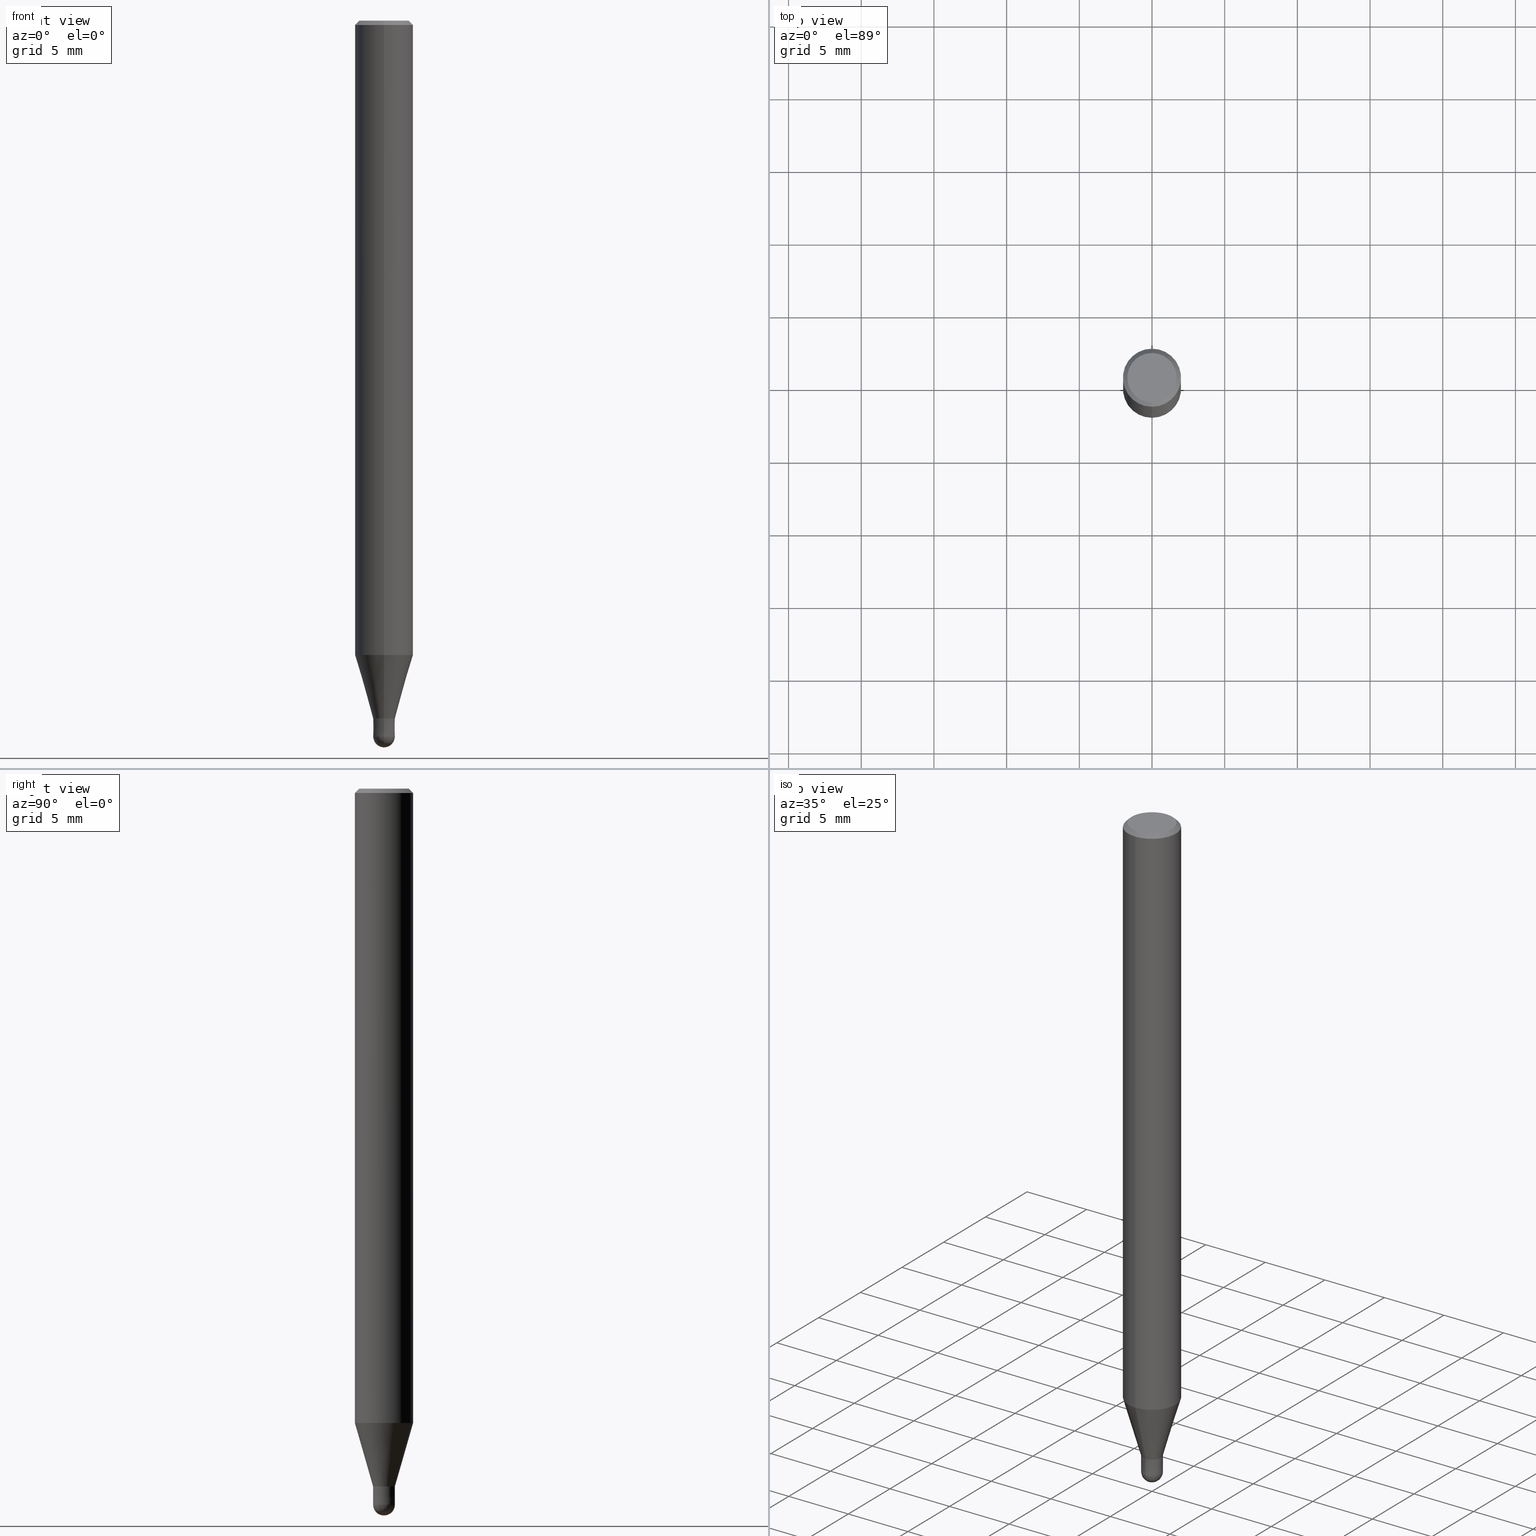
[diagram: canonical four-view strip — front | top / right | iso, engineering-drawing reading convention]
A machine part, canonical four-view strip (front | top / right | iso — engineering-drawing reading convention). The complete STEP part file that produces these views, byte-faithful:
ISO-10303-21;
HEADER;
FILE_DESCRIPTION(('no description'),'unknown implementation level');
FILE_NAME('HSB2015-0200-Huellk.stp','  ',('CIMSOURCE GmbH'),('CADClick - KiM GmbH - www.kimweb.de'),'unknown preprocess','ACIS','unknown authorization');
FILE_SCHEMA(('automotive_design'));
ENDSEC;
DATA;
#1=MECHANICAL_DESIGN_GEOMETRIC_PRESENTATION_REPRESENTATION(' ',(#14,#15,#16,#17,#18,#19,#20,#21,#22,#23,#24,#25,#26,#27,#28,#29,#30,#31,#32,#33,#34,#35,#36,#37,#38,#39,#40,#41,#42,#43,#44,#45,#46,#47,#48,#49,#50,#51,#52,#53,#54,#55,#56,#57,#58,#59,#60,#61,#62,#63,#64,#65,#66),#10);
#2=PRODUCT_DEFINITION_CONTEXT('',#67,'design');
#3=APPLICATION_PROTOCOL_DEFINITION('INTERNATIONAL STANDARD','automotive_design',1994,#67);
#4=PRODUCT_CATEGORY_RELATIONSHIP('NONE','NONE',#68,#69);
#5=SHAPE_DEFINITION_REPRESENTATION(#70,#71);
#6=PRODUCT_DEFINITION_CONTEXT('',#72,'design');
#7=APPLICATION_PROTOCOL_DEFINITION('INTERNATIONAL STANDARD','automotive_design',1994,#72);
#8=PRODUCT_CATEGORY_RELATIONSHIP('NONE','NONE',#73,#74);
#9=SHAPE_DEFINITION_REPRESENTATION(#75,#76);
#10= (GEOMETRIC_REPRESENTATION_CONTEXT(3)GLOBAL_UNCERTAINTY_ASSIGNED_CONTEXT((#79))GLOBAL_UNIT_ASSIGNED_CONTEXT((#81,#82,#83))REPRESENTATION_CONTEXT('NONE','WORKSPACE'));
#14=STYLED_ITEM('',(#85),#86);
#15=STYLED_ITEM('',(#87),#88);
#16=STYLED_ITEM('',(#89),#90);
#17=STYLED_ITEM('',(#91),#92);
#18=STYLED_ITEM('',(#93),#94);
#19=STYLED_ITEM('',(#95),#96);
#20=STYLED_ITEM('',(#97),#98);
#21=STYLED_ITEM('',(#99),#100);
#22=STYLED_ITEM('',(#101),#102);
#23=STYLED_ITEM('',(#103),#104);
#24=STYLED_ITEM('',(#105),#106);
#25=STYLED_ITEM('',(#107),#108);
#26=STYLED_ITEM('',(#109),#110);
#27=STYLED_ITEM('',(#111),#112);
#28=STYLED_ITEM('',(#113),#114);
#29=STYLED_ITEM('',(#115),#116);
#30=STYLED_ITEM('',(#117),#118);
#31=STYLED_ITEM('',(#119),#120);
#32=STYLED_ITEM('',(#121),#122);
#33=STYLED_ITEM('',(#123),#124);
#34=STYLED_ITEM('',(#125),#126);
#35=STYLED_ITEM('',(#127),#128);
#36=STYLED_ITEM('',(#129),#130);
#37=STYLED_ITEM('',(#131),#132);
#38=STYLED_ITEM('',(#133),#134);
#39=STYLED_ITEM('',(#135),#136);
#40=STYLED_ITEM('',(#137),#138);
#41=STYLED_ITEM('',(#139),#140);
#42=STYLED_ITEM('',(#141),#142);
#43=STYLED_ITEM('',(#143),#144);
#44=STYLED_ITEM('',(#145),#146);
#45=STYLED_ITEM('',(#147),#148);
#46=STYLED_ITEM('',(#149),#150);
#47=STYLED_ITEM('',(#151),#152);
#48=STYLED_ITEM('',(#153),#154);
#49=STYLED_ITEM('',(#155),#156);
#50=STYLED_ITEM('',(#157),#158);
#51=STYLED_ITEM('',(#159),#160);
#52=STYLED_ITEM('',(#161),#162);
#53=STYLED_ITEM('',(#163),#164);
#54=STYLED_ITEM('',(#165),#166);
#55=STYLED_ITEM('',(#167),#168);
#56=STYLED_ITEM('',(#169),#170);
#57=STYLED_ITEM('',(#171),#172);
#58=STYLED_ITEM('',(#173),#174);
#59=STYLED_ITEM('',(#175),#176);
#60=STYLED_ITEM('',(#177),#178);
#61=STYLED_ITEM('',(#179),#180);
#62=STYLED_ITEM('',(#181),#182);
#63=STYLED_ITEM('',(#183),#184);
#64=STYLED_ITEM('',(#185),#186);
#65=STYLED_ITEM('',(#187),#188);
#66=STYLED_ITEM('',(#189),#190);
#67=APPLICATION_CONTEXT(' ');
#68=PRODUCT_CATEGORY('part','NONE');
#69=PRODUCT_RELATED_PRODUCT_CATEGORY('detail',' ',(#191));
#70=PRODUCT_DEFINITION_SHAPE('NONE','NONE',#192);
#71=ADVANCED_BREP_SHAPE_REPRESENTATION('1',(#142,#193),#10);
#72=APPLICATION_CONTEXT(' ');
#73=PRODUCT_CATEGORY('part','NONE');
#74=PRODUCT_RELATED_PRODUCT_CATEGORY('detail',' ',(#194));
#75=PRODUCT_DEFINITION_SHAPE('NONE','NONE',#195);
#76=ADVANCED_BREP_SHAPE_REPRESENTATION('2',(#114,#196),#10);
#79=UNCERTAINTY_MEASURE_WITH_UNIT(LENGTH_MEASURE(1.0E-006),#81,'','');
#81= (CONVERSION_BASED_UNIT('MILLIMETRE',#199)LENGTH_UNIT()NAMED_UNIT(#202));
#82= (NAMED_UNIT(#204)PLANE_ANGLE_UNIT()SI_UNIT($,.RADIAN.));
#83= (NAMED_UNIT(#204)SOLID_ANGLE_UNIT()SI_UNIT($,.STERADIAN.));
#85=PRESENTATION_STYLE_ASSIGNMENT((#210));
#86=EDGE_CURVE('',#176,#156,#211,.T.);
#87=PRESENTATION_STYLE_ASSIGNMENT((#212));
#88=ADVANCED_FACE('',(#213),#214,.T.);
#89=PRESENTATION_STYLE_ASSIGNMENT((#215));
#90=ADVANCED_FACE('',(#216),#217,.T.);
#91=PRESENTATION_STYLE_ASSIGNMENT((#218));
#92=ADVANCED_FACE('',(#219),#220,.T.);
#93=PRESENTATION_STYLE_ASSIGNMENT((#221));
#94=VERTEX_POINT('',#222);
#95=PRESENTATION_STYLE_ASSIGNMENT((#223));
#96=ADVANCED_FACE('',(#224),#225,.T.);
#97=PRESENTATION_STYLE_ASSIGNMENT((#226));
#98=EDGE_CURVE('',#148,#176,#227,.T.);
#99=PRESENTATION_STYLE_ASSIGNMENT((#228));
#100=VERTEX_POINT('',#229);
#101=PRESENTATION_STYLE_ASSIGNMENT((#230));
#102=EDGE_CURVE('',#180,#164,#231,.T.);
#103=PRESENTATION_STYLE_ASSIGNMENT((#232));
#104=EDGE_CURVE('',#184,#166,#233,.T.);
#105=PRESENTATION_STYLE_ASSIGNMENT((#234));
#106=VERTEX_POINT('',#235);
#107=PRESENTATION_STYLE_ASSIGNMENT((#236));
#108=EDGE_CURVE('',#176,#148,#237,.T.);
#109=PRESENTATION_STYLE_ASSIGNMENT((#238));
#110=EDGE_CURVE('',#166,#184,#239,.T.);
#111=PRESENTATION_STYLE_ASSIGNMENT((#240));
#112=EDGE_CURVE('',#100,#170,#241,.T.);
#113=PRESENTATION_STYLE_ASSIGNMENT((#242));
#114=MANIFOLD_SOLID_BREP('2',#243);
#115=PRESENTATION_STYLE_ASSIGNMENT((#244));
#116=EDGE_CURVE('',#106,#178,#245,.T.);
#117=PRESENTATION_STYLE_ASSIGNMENT((#246));
#118=EDGE_CURVE('',#156,#130,#247,.T.);
#119=PRESENTATION_STYLE_ASSIGNMENT((#248));
#120=EDGE_CURVE('',#100,#186,#249,.T.);
#121=PRESENTATION_STYLE_ASSIGNMENT((#250));
#122=ADVANCED_FACE('',(#251,#252),#253,.T.);
#123=PRESENTATION_STYLE_ASSIGNMENT((#254));
#124=ADVANCED_FACE('',(#255),#256,.T.);
#125=PRESENTATION_STYLE_ASSIGNMENT((#257));
#126=EDGE_CURVE('',#164,#148,#258,.T.);
#127=PRESENTATION_STYLE_ASSIGNMENT((#259));
#128=EDGE_CURVE('',#166,#178,#260,.T.);
#129=PRESENTATION_STYLE_ASSIGNMENT((#261));
#130=VERTEX_POINT('',#262);
#131=PRESENTATION_STYLE_ASSIGNMENT((#263));
#132=EDGE_CURVE('',#156,#164,#264,.T.);
#133=PRESENTATION_STYLE_ASSIGNMENT((#265));
#134=EDGE_CURVE('',#178,#106,#266,.T.);
#135=PRESENTATION_STYLE_ASSIGNMENT((#267));
#136=ADVANCED_FACE('',(#268),#269,.T.);
#137=PRESENTATION_STYLE_ASSIGNMENT((#270));
#138=ADVANCED_FACE('',(#271),#272,.T.);
#139=PRESENTATION_STYLE_ASSIGNMENT((#273));
#140=EDGE_CURVE('',#130,#180,#274,.T.);
#141=PRESENTATION_STYLE_ASSIGNMENT((#275));
#142=MANIFOLD_SOLID_BREP('1',#276);
#143=PRESENTATION_STYLE_ASSIGNMENT((#277));
#144=ADVANCED_FACE('',(#278),#279,.T.);
#145=PRESENTATION_STYLE_ASSIGNMENT((#280));
#146=EDGE_CURVE('',#94,#170,#281,.T.);
#147=PRESENTATION_STYLE_ASSIGNMENT((#282));
#148=VERTEX_POINT('',#283);
#149=PRESENTATION_STYLE_ASSIGNMENT((#284));
#150=EDGE_CURVE('',#164,#156,#285,.T.);
#151=PRESENTATION_STYLE_ASSIGNMENT((#286));
#152=ADVANCED_FACE('',(#287),#288,.T.);
#153=PRESENTATION_STYLE_ASSIGNMENT((#289));
#154=ADVANCED_FACE('',(#290),#291,.T.);
#155=PRESENTATION_STYLE_ASSIGNMENT((#292));
#156=VERTEX_POINT('',#293);
#157=PRESENTATION_STYLE_ASSIGNMENT((#294));
#158=ADVANCED_FACE('',(#295),#296,.T.);
#159=PRESENTATION_STYLE_ASSIGNMENT((#297));
#160=EDGE_CURVE('',#170,#94,#298,.T.);
#161=PRESENTATION_STYLE_ASSIGNMENT((#299));
#162=EDGE_CURVE('',#106,#184,#300,.T.);
#163=PRESENTATION_STYLE_ASSIGNMENT((#301));
#164=VERTEX_POINT('',#302);
#165=PRESENTATION_STYLE_ASSIGNMENT((#303));
#166=VERTEX_POINT('',#304);
#167=PRESENTATION_STYLE_ASSIGNMENT((#305));
#168=ADVANCED_FACE('',(#306),#307,.T.);
#169=PRESENTATION_STYLE_ASSIGNMENT((#308));
#170=VERTEX_POINT('',#309);
#171=PRESENTATION_STYLE_ASSIGNMENT((#310));
#172=EDGE_CURVE('',#186,#100,#311,.T.);
#173=PRESENTATION_STYLE_ASSIGNMENT((#312));
#174=EDGE_CURVE('',#106,#178,#313,.T.);
#175=PRESENTATION_STYLE_ASSIGNMENT((#314));
#176=VERTEX_POINT('',#315);
#177=PRESENTATION_STYLE_ASSIGNMENT((#316));
#178=VERTEX_POINT('',#317);
#179=PRESENTATION_STYLE_ASSIGNMENT((#318));
#180=VERTEX_POINT('',#319);
#181=PRESENTATION_STYLE_ASSIGNMENT((#320));
#182=ADVANCED_FACE('',(#321),#322,.T.);
#183=PRESENTATION_STYLE_ASSIGNMENT((#323));
#184=VERTEX_POINT('',#324);
#185=PRESENTATION_STYLE_ASSIGNMENT((#325));
#186=VERTEX_POINT('',#326);
#187=PRESENTATION_STYLE_ASSIGNMENT((#327));
#188=EDGE_CURVE('',#180,#130,#328,.T.);
#189=PRESENTATION_STYLE_ASSIGNMENT((#329));
#190=EDGE_CURVE('',#94,#186,#330,.T.);
#191=PRODUCT('1','1','PART-1-DESC',(#331));
#192=PRODUCT_DEFINITION('NONE','NONE',#332,#2);
#193=AXIS2_PLACEMENT_3D('',#333,#334,#335);
#194=PRODUCT('2','2','PART-2-DESC',(#336));
#195=PRODUCT_DEFINITION('NONE','NONE',#337,#6);
#196=AXIS2_PLACEMENT_3D('',#338,#339,#340);
#199=LENGTH_MEASURE_WITH_UNIT(LENGTH_MEASURE(1.0),#341);
#202=DIMENSIONAL_EXPONENTS(1.0,0.0,0.0,0.0,0.0,0.0,0.0);
#204=DIMENSIONAL_EXPONENTS(0.0,0.0,0.0,0.0,0.0,0.0,0.0);
#210=CURVE_STYLE('',#342,POSITIVE_LENGTH_MEASURE(1.0E-006),#343);
#211=LINE('',#344,#345);
#212=SURFACE_STYLE_USAGE(.BOTH.,#346);
#213=FACE_OUTER_BOUND('',#347,.T.);
#214=SPHERICAL_SURFACE('',#348,0.750000000000001);
#215=SURFACE_STYLE_USAGE(.BOTH.,#349);
#216=FACE_OUTER_BOUND('',#350,.T.);
#217=SPHERICAL_SURFACE('',#351,0.750000000000001);
#218=SURFACE_STYLE_USAGE(.BOTH.,#352);
#219=FACE_OUTER_BOUND('',#353,.T.);
#220=PLANE('',#354);
#221=POINT_STYLE(' ',#355,POSITIVE_LENGTH_MEASURE(1.0E-006),#356);
#222=CARTESIAN_POINT('',(9.18393535049092E-017,-0.74995,-48.0));
#223=SURFACE_STYLE_USAGE(.BOTH.,#357);
#224=FACE_OUTER_BOUND('',#358,.T.);
#225=CONICAL_SURFACE('',#359,0.74995,7.99999998294133E-005);
#226=CURVE_STYLE('',#360,POSITIVE_LENGTH_MEASURE(1.0E-006),#361);
#227=CIRCLE('',#362,1.7);
#228=POINT_STYLE(' ',#363,POSITIVE_LENGTH_MEASURE(1.0E-006),#364);
#229=CARTESIAN_POINT('',(0.0,1.99995,-43.641));
#230=CURVE_STYLE('',#365,POSITIVE_LENGTH_MEASURE(1.0E-006),#366);
#231=LINE('',#367,#368);
#232=CURVE_STYLE('',#369,POSITIVE_LENGTH_MEASURE(1.0E-006),#370);
#233=CIRCLE('',#371,0.7499);
#234=POINT_STYLE(' ',#372,POSITIVE_LENGTH_MEASURE(1.0E-006),#373);
#235=CARTESIAN_POINT('',(9.18454765366783E-017,-0.75,-49.25));
#236=CURVE_STYLE('',#374,POSITIVE_LENGTH_MEASURE(1.0E-006),#375);
#237=CIRCLE('',#376,1.7);
#238=CURVE_STYLE('',#377,POSITIVE_LENGTH_MEASURE(1.0E-006),#378);
#239=CIRCLE('',#379,0.7499);
#240=CURVE_STYLE('',#380,POSITIVE_LENGTH_MEASURE(1.0E-006),#381);
#241=LINE('',#382,#383);
#242=SURFACE_STYLE_USAGE(.BOTH.,#384);
#243=CLOSED_SHELL('',(#88,#158,#92,#96,#90));
#244=CURVE_STYLE('',#385,POSITIVE_LENGTH_MEASURE(1.0E-006),#386);
#245=CIRCLE('',#387,0.750000000000001);
#246=CURVE_STYLE('',#388,POSITIVE_LENGTH_MEASURE(1.0E-006),#389);
#247=LINE('',#390,#391);
#248=CURVE_STYLE('',#392,POSITIVE_LENGTH_MEASURE(1.0E-006),#393);
#249=CIRCLE('',#394,1.99995);
#250=SURFACE_STYLE_USAGE(.BOTH.,#395);
#251=FACE_OUTER_BOUND('',#396,.T.);
#252=FACE_BOUND('',#397,.T.);
#253=PLANE('',#398);
#254=SURFACE_STYLE_USAGE(.BOTH.,#399);
#255=FACE_OUTER_BOUND('',#400,.T.);
#256=CYLINDRICAL_SURFACE('',#401,2.0);
#257=CURVE_STYLE('',#402,POSITIVE_LENGTH_MEASURE(1.0E-006),#403);
#258=LINE('',#404,#405);
#259=CURVE_STYLE('',#406,POSITIVE_LENGTH_MEASURE(1.0E-006),#407);
#260=LINE('',#408,#409);
#261=POINT_STYLE(' ',#410,POSITIVE_LENGTH_MEASURE(1.0E-006),#411);
#262=CARTESIAN_POINT('',(0.0,2.0,-43.641));
#263=CURVE_STYLE('',#412,POSITIVE_LENGTH_MEASURE(1.0E-006),#413);
#264=CIRCLE('',#414,2.0);
#265=CURVE_STYLE('',#415,POSITIVE_LENGTH_MEASURE(1.0E-006),#416);
#266=CIRCLE('',#417,0.75);
#267=SURFACE_STYLE_USAGE(.BOTH.,#418);
#268=FACE_OUTER_BOUND('',#419,.T.);
#269=CONICAL_SURFACE('',#420,1.85,0.785398163397453);
#270=SURFACE_STYLE_USAGE(.BOTH.,#421);
#271=FACE_OUTER_BOUND('',#422,.T.);
#272=CONICAL_SURFACE('',#423,1.37495,0.279268973819818);
#273=CURVE_STYLE('',#424,POSITIVE_LENGTH_MEASURE(1.0E-006),#425);
#274=CIRCLE('',#426,2.0);
#275=SURFACE_STYLE_USAGE(.BOTH.,#427);
#276=CLOSED_SHELL('',(#138,#182,#152,#122,#144,#136,#124,#154,#168));
#277=SURFACE_STYLE_USAGE(.BOTH.,#428);
#278=FACE_OUTER_BOUND('',#429,.T.);
#279=PLANE('',#430);
#280=CURVE_STYLE('',#431,POSITIVE_LENGTH_MEASURE(1.0E-006),#432);
#281=CIRCLE('',#433,0.74995);
#282=POINT_STYLE(' ',#434,POSITIVE_LENGTH_MEASURE(1.0E-006),#435);
#283=CARTESIAN_POINT('',(2.08183080149804E-016,-1.7,0.0));
#284=CURVE_STYLE('',#436,POSITIVE_LENGTH_MEASURE(1.0E-006),#437);
#285=CIRCLE('',#438,2.0);
#286=SURFACE_STYLE_USAGE(.BOTH.,#439);
#287=FACE_OUTER_BOUND('',#440,.T.);
#288=CONICAL_SURFACE('',#441,1.85,0.785398163397453);
#289=SURFACE_STYLE_USAGE(.BOTH.,#442);
#290=FACE_OUTER_BOUND('',#443,.T.);
#291=CONICAL_SURFACE('',#444,1.37495,0.279268973819818);
#292=POINT_STYLE(' ',#445,POSITIVE_LENGTH_MEASURE(1.0E-006),#446);
#293=CARTESIAN_POINT('',(0.0,2.0,-0.299999999999997));
#294=SURFACE_STYLE_USAGE(.BOTH.,#447);
#295=FACE_OUTER_BOUND('',#448,.T.);
#296=CONICAL_SURFACE('',#449,0.74995,7.99999998294133E-005);
#297=CURVE_STYLE('',#450,POSITIVE_LENGTH_MEASURE(1.0E-006),#451);
#298=CIRCLE('',#452,0.74995);
#299=CURVE_STYLE('',#453,POSITIVE_LENGTH_MEASURE(1.0E-006),#454);
#300=LINE('',#455,#456);
#301=POINT_STYLE(' ',#457,POSITIVE_LENGTH_MEASURE(1.0E-006),#458);
#302=CARTESIAN_POINT('',(2.44921270764475E-016,-2.0,-0.299999999999997));
#303=POINT_STYLE(' ',#459,POSITIVE_LENGTH_MEASURE(1.0E-006),#460);
#304=CARTESIAN_POINT('',(0.0,0.7499,-48.0));
#305=SURFACE_STYLE_USAGE(.BOTH.,#461);
#306=FACE_OUTER_BOUND('',#462,.T.);
#307=PLANE('',#463);
#308=POINT_STYLE(' ',#464,POSITIVE_LENGTH_MEASURE(1.0E-006),#465);
#309=CARTESIAN_POINT('',(0.0,0.74995,-48.0));
#310=CURVE_STYLE('',#466,POSITIVE_LENGTH_MEASURE(1.0E-006),#467);
#311=CIRCLE('',#468,1.99995);
#312=CURVE_STYLE('',#469,POSITIVE_LENGTH_MEASURE(1.0E-006),#470);
#313=CIRCLE('',#471,0.75);
#314=POINT_STYLE(' ',#472,POSITIVE_LENGTH_MEASURE(1.0E-006),#473);
#315=CARTESIAN_POINT('',(0.0,1.7,0.0));
#316=POINT_STYLE(' ',#474,POSITIVE_LENGTH_MEASURE(1.0E-006),#475);
#317=CARTESIAN_POINT('',(0.0,0.75,-49.25));
#318=POINT_STYLE(' ',#476,POSITIVE_LENGTH_MEASURE(1.0E-006),#477);
#319=CARTESIAN_POINT('',(2.44921270764475E-016,-2.0,-43.641));
#320=SURFACE_STYLE_USAGE(.BOTH.,#478);
#321=FACE_OUTER_BOUND('',#479,.T.);
#322=CYLINDRICAL_SURFACE('',#480,2.0);
#323=POINT_STYLE(' ',#481,POSITIVE_LENGTH_MEASURE(1.0E-006),#482);
#324=CARTESIAN_POINT('',(9.18332304731401E-017,-0.7499,-48.0));
#325=POINT_STYLE(' ',#483,POSITIVE_LENGTH_MEASURE(1.0E-006),#484);
#326=CARTESIAN_POINT('',(2.44915147732706E-016,-1.99995,-43.641));
#327=CURVE_STYLE('',#485,POSITIVE_LENGTH_MEASURE(1.0E-006),#486);
#328=CIRCLE('',#487,2.0);
#329=CURVE_STYLE('',#488,POSITIVE_LENGTH_MEASURE(1.0E-006),#489);
#330=LINE('',#490,#491);
#331=PRODUCT_CONTEXT('',#67,'mechanical');
#332=PRODUCT_DEFINITION_FORMATION_WITH_SPECIFIED_SOURCE(' ','NONE',#191,.NOT_KNOWN.);
#333=CARTESIAN_POINT('',(0.0,0.0,0.0));
#334=DIRECTION('',(0.0,0.0,1.0));
#335=DIRECTION('',(1.0,0.0,0.0));
#336=PRODUCT_CONTEXT('',#72,'mechanical');
#337=PRODUCT_DEFINITION_FORMATION_WITH_SPECIFIED_SOURCE(' ','NONE',#194,.NOT_KNOWN.);
#338=CARTESIAN_POINT('',(0.0,0.0,0.0));
#339=DIRECTION('',(0.0,0.0,1.0));
#340=DIRECTION('',(1.0,0.0,0.0));
#341= (NAMED_UNIT(#202)LENGTH_UNIT()SI_UNIT(.MILLI.,.METRE.));
#342=DRAUGHTING_PRE_DEFINED_CURVE_FONT('continuous');
#343=COLOUR_RGB('',0.498039215803146,0.498039215803146,0.498039215803146);
#344=CARTESIAN_POINT('',(-2.2655217545714E-016,1.85,-0.149999999999999));
#345=VECTOR('',#493,1.0);
#346=SURFACE_SIDE_STYLE('',(#494));
#347=EDGE_LOOP('',(#495,#496));
#348=AXIS2_PLACEMENT_3D('',#497,#498,#499);
#349=SURFACE_SIDE_STYLE('',(#500));
#350=EDGE_LOOP('',(#501,#502));
#351=AXIS2_PLACEMENT_3D('',#503,#504,#505);
#352=SURFACE_SIDE_STYLE('',(#506));
#353=EDGE_LOOP('',(#507,#508));
#354=AXIS2_PLACEMENT_3D('',#509,#510,#511);
#355=PRE_DEFINED_MARKER('');
#356=COLOUR_RGB('',0.498039215803146,0.498039215803146,0.498039215803146);
#357=SURFACE_SIDE_STYLE('',(#512));
#358=EDGE_LOOP('',(#513,#514,#515,#516));
#359=AXIS2_PLACEMENT_3D('',#517,#518,#519);
#360=DRAUGHTING_PRE_DEFINED_CURVE_FONT('continuous');
#361=COLOUR_RGB('',0.498039215803146,0.498039215803146,0.498039215803146);
#362=AXIS2_PLACEMENT_3D('',#520,#521,#522);
#363=PRE_DEFINED_MARKER('');
#364=COLOUR_RGB('',0.498039215803146,0.498039215803146,0.498039215803146);
#365=DRAUGHTING_PRE_DEFINED_CURVE_FONT('continuous');
#366=COLOUR_RGB('',0.498039215803146,0.498039215803146,0.498039215803146);
#367=CARTESIAN_POINT('',(2.44921270764475E-016,-2.0,-21.9705));
#368=VECTOR('',#523,1.0);
#369=DRAUGHTING_PRE_DEFINED_CURVE_FONT('continuous');
#370=COLOUR_RGB('',0.800000011920929,0.800000011920929,0.800000011920929);
#371=AXIS2_PLACEMENT_3D('',#524,#525,#526);
#372=PRE_DEFINED_MARKER('');
#373=COLOUR_RGB('',0.800000011920929,0.800000011920929,0.800000011920929);
#374=DRAUGHTING_PRE_DEFINED_CURVE_FONT('continuous');
#375=COLOUR_RGB('',0.498039215803146,0.498039215803146,0.498039215803146);
#376=AXIS2_PLACEMENT_3D('',#527,#528,#529);
#377=DRAUGHTING_PRE_DEFINED_CURVE_FONT('continuous');
#378=COLOUR_RGB('',0.800000011920929,0.800000011920929,0.800000011920929);
#379=AXIS2_PLACEMENT_3D('',#530,#531,#532);
#380=DRAUGHTING_PRE_DEFINED_CURVE_FONT('continuous');
#381=COLOUR_RGB('',0.498039215803146,0.498039215803146,0.498039215803146);
#382=CARTESIAN_POINT('',(-1.68377250618808E-016,1.37495,-45.8205));
#383=VECTOR('',#533,1.0);
#384=SURFACE_SIDE_STYLE('',(#534));
#385=DRAUGHTING_PRE_DEFINED_CURVE_FONT('continuous');
#386=COLOUR_RGB('',0.800000011920929,0.800000011920929,0.800000011920929);
#387=AXIS2_PLACEMENT_3D('',#535,#536,#537);
#388=DRAUGHTING_PRE_DEFINED_CURVE_FONT('continuous');
#389=COLOUR_RGB('',0.498039215803146,0.498039215803146,0.498039215803146);
#390=CARTESIAN_POINT('',(-2.44921270764475E-016,2.0,-21.9705));
#391=VECTOR('',#538,1.0);
#392=DRAUGHTING_PRE_DEFINED_CURVE_FONT('continuous');
#393=COLOUR_RGB('',0.498039215803146,0.498039215803146,0.498039215803146);
#394=AXIS2_PLACEMENT_3D('',#539,#540,#541);
#395=SURFACE_SIDE_STYLE('',(#542));
#396=EDGE_LOOP('',(#543,#544));
#397=EDGE_LOOP('',(#545,#546));
#398=AXIS2_PLACEMENT_3D('',#547,#548,#549);
#399=SURFACE_SIDE_STYLE('',(#550));
#400=EDGE_LOOP('',(#551,#552,#553,#554));
#401=AXIS2_PLACEMENT_3D('',#555,#556,#557);
#402=DRAUGHTING_PRE_DEFINED_CURVE_FONT('continuous');
#403=COLOUR_RGB('',0.498039215803146,0.498039215803146,0.498039215803146);
#404=CARTESIAN_POINT('',(2.2655217545714E-016,-1.85,-0.149999999999999));
#405=VECTOR('',#558,1.0);
#406=DRAUGHTING_PRE_DEFINED_CURVE_FONT('continuous');
#407=COLOUR_RGB('',0.800000011920929,0.800000011920929,0.800000011920929);
#408=CARTESIAN_POINT('',(-9.18393535049092E-017,0.74995,-48.625));
#409=VECTOR('',#559,1.0);
#410=PRE_DEFINED_MARKER('');
#411=COLOUR_RGB('',0.498039215803146,0.498039215803146,0.498039215803146);
#412=DRAUGHTING_PRE_DEFINED_CURVE_FONT('continuous');
#413=COLOUR_RGB('',0.498039215803146,0.498039215803146,0.498039215803146);
#414=AXIS2_PLACEMENT_3D('',#560,#561,#562);
#415=DRAUGHTING_PRE_DEFINED_CURVE_FONT('continuous');
#416=COLOUR_RGB('',0.800000011920929,0.800000011920929,0.800000011920929);
#417=AXIS2_PLACEMENT_3D('',#563,#564,#565);
#418=SURFACE_SIDE_STYLE('',(#566));
#419=EDGE_LOOP('',(#567,#568,#569,#570));
#420=AXIS2_PLACEMENT_3D('',#571,#572,#573);
#421=SURFACE_SIDE_STYLE('',(#574));
#422=EDGE_LOOP('',(#575,#576,#577,#578));
#423=AXIS2_PLACEMENT_3D('',#579,#580,#581);
#424=DRAUGHTING_PRE_DEFINED_CURVE_FONT('continuous');
#425=COLOUR_RGB('',0.498039215803146,0.498039215803146,0.498039215803146);
#426=AXIS2_PLACEMENT_3D('',#582,#583,#584);
#427=SURFACE_SIDE_STYLE('',(#585));
#428=SURFACE_SIDE_STYLE('',(#586));
#429=EDGE_LOOP('',(#587,#588));
#430=AXIS2_PLACEMENT_3D('',#589,#590,#591);
#431=DRAUGHTING_PRE_DEFINED_CURVE_FONT('continuous');
#432=COLOUR_RGB('',0.498039215803146,0.498039215803146,0.498039215803146);
#433=AXIS2_PLACEMENT_3D('',#592,#593,#594);
#434=PRE_DEFINED_MARKER('');
#435=COLOUR_RGB('',0.498039215803146,0.498039215803146,0.498039215803146);
#436=DRAUGHTING_PRE_DEFINED_CURVE_FONT('continuous');
#437=COLOUR_RGB('',0.498039215803146,0.498039215803146,0.498039215803146);
#438=AXIS2_PLACEMENT_3D('',#595,#596,#597);
#439=SURFACE_SIDE_STYLE('',(#598));
#440=EDGE_LOOP('',(#599,#600,#601,#602));
#441=AXIS2_PLACEMENT_3D('',#603,#604,#605);
#442=SURFACE_SIDE_STYLE('',(#606));
#443=EDGE_LOOP('',(#607,#608,#609,#610));
#444=AXIS2_PLACEMENT_3D('',#611,#612,#613);
#445=PRE_DEFINED_MARKER('');
#446=COLOUR_RGB('',0.498039215803146,0.498039215803146,0.498039215803146);
#447=SURFACE_SIDE_STYLE('',(#614));
#448=EDGE_LOOP('',(#615,#616,#617,#618));
#449=AXIS2_PLACEMENT_3D('',#619,#620,#621);
#450=DRAUGHTING_PRE_DEFINED_CURVE_FONT('continuous');
#451=COLOUR_RGB('',0.498039215803146,0.498039215803146,0.498039215803146);
#452=AXIS2_PLACEMENT_3D('',#622,#623,#624);
#453=DRAUGHTING_PRE_DEFINED_CURVE_FONT('continuous');
#454=COLOUR_RGB('',0.800000011920929,0.800000011920929,0.800000011920929);
#455=CARTESIAN_POINT('',(9.18393535049092E-017,-0.74995,-48.625));
#456=VECTOR('',#625,1.0);
#457=PRE_DEFINED_MARKER('');
#458=COLOUR_RGB('',0.498039215803146,0.498039215803146,0.498039215803146);
#459=PRE_DEFINED_MARKER('');
#460=COLOUR_RGB('',0.800000011920929,0.800000011920929,0.800000011920929);
#461=SURFACE_SIDE_STYLE('',(#626));
#462=EDGE_LOOP('',(#627,#628));
#463=AXIS2_PLACEMENT_3D('',#629,#630,#631);
#464=PRE_DEFINED_MARKER('');
#465=COLOUR_RGB('',0.498039215803146,0.498039215803146,0.498039215803146);
#466=DRAUGHTING_PRE_DEFINED_CURVE_FONT('continuous');
#467=COLOUR_RGB('',0.498039215803146,0.498039215803146,0.498039215803146);
#468=AXIS2_PLACEMENT_3D('',#632,#633,#634);
#469=DRAUGHTING_PRE_DEFINED_CURVE_FONT('continuous');
#470=COLOUR_RGB('',0.800000011920929,0.800000011920929,0.800000011920929);
#471=AXIS2_PLACEMENT_3D('',#635,#636,#637);
#472=PRE_DEFINED_MARKER('');
#473=COLOUR_RGB('',0.498039215803146,0.498039215803146,0.498039215803146);
#474=PRE_DEFINED_MARKER('');
#475=COLOUR_RGB('',0.800000011920929,0.800000011920929,0.800000011920929);
#476=PRE_DEFINED_MARKER('');
#477=COLOUR_RGB('',0.498039215803146,0.498039215803146,0.498039215803146);
#478=SURFACE_SIDE_STYLE('',(#638));
#479=EDGE_LOOP('',(#639,#640,#641,#642));
#480=AXIS2_PLACEMENT_3D('',#643,#644,#645);
#481=PRE_DEFINED_MARKER('');
#482=COLOUR_RGB('',0.800000011920929,0.800000011920929,0.800000011920929);
#483=PRE_DEFINED_MARKER('');
#484=COLOUR_RGB('',0.498039215803146,0.498039215803146,0.498039215803146);
#485=DRAUGHTING_PRE_DEFINED_CURVE_FONT('continuous');
#486=COLOUR_RGB('',0.498039215803146,0.498039215803146,0.498039215803146);
#487=AXIS2_PLACEMENT_3D('',#646,#647,#648);
#488=DRAUGHTING_PRE_DEFINED_CURVE_FONT('continuous');
#489=COLOUR_RGB('',0.498039215803146,0.498039215803146,0.498039215803146);
#490=CARTESIAN_POINT('',(1.68377250618808E-016,-1.37495,-45.8205));
#491=VECTOR('',#649,1.0);
#493=DIRECTION('',(-8.6592745707194E-017,0.707106781186551,-0.707106781186544));
#494=SURFACE_STYLE_FILL_AREA(#650);
#495=ORIENTED_EDGE('',*,*,#116,.F.);
#496=ORIENTED_EDGE('',*,*,#174,.T.);
#497=CARTESIAN_POINT('',(0.0,0.0,-49.25));
#498=DIRECTION('',(0.0,1.0,0.0));
#499=DIRECTION('',(0.0,0.0,-1.0));
#500=SURFACE_STYLE_FILL_AREA(#651);
#501=ORIENTED_EDGE('',*,*,#116,.T.);
#502=ORIENTED_EDGE('',*,*,#134,.T.);
#503=CARTESIAN_POINT('',(0.0,0.0,-49.25));
#504=DIRECTION('',(0.0,1.0,0.0));
#505=DIRECTION('',(0.0,0.0,-1.0));
#506=SURFACE_STYLE_FILL_AREA(#652);
#507=ORIENTED_EDGE('',*,*,#110,.F.);
#508=ORIENTED_EDGE('',*,*,#104,.F.);
#509=CARTESIAN_POINT('',(0.0,0.37495,-48.0));
#510=DIRECTION('',(-0.0,0.0,1.0));
#511=DIRECTION('',(0.0,-1.0,0.0));
#512=SURFACE_STYLE_FILL_AREA(#653);
#513=ORIENTED_EDGE('',*,*,#128,.T.);
#514=ORIENTED_EDGE('',*,*,#174,.F.);
#515=ORIENTED_EDGE('',*,*,#162,.T.);
#516=ORIENTED_EDGE('',*,*,#104,.T.);
#517=CARTESIAN_POINT('',(0.0,0.0,-48.625));
#518=DIRECTION('',(0.0,-0.0,-1.0));
#519=DIRECTION('',(0.0,1.0,0.0));
#520=CARTESIAN_POINT('',(0.0,0.0,0.0));
#521=DIRECTION('',(0.0,0.0,-1.0));
#522=DIRECTION('',(0.0,1.0,0.0));
#523=DIRECTION('',(-0.0,-0.0,1.0));
#524=CARTESIAN_POINT('',(0.0,0.0,-48.0));
#525=DIRECTION('',(0.0,0.0,-1.0));
#526=DIRECTION('',(0.0,1.0,0.0));
#527=CARTESIAN_POINT('',(0.0,0.0,0.0));
#528=DIRECTION('',(0.0,0.0,-1.0));
#529=DIRECTION('',(0.0,1.0,0.0));
#530=CARTESIAN_POINT('',(0.0,0.0,-48.0));
#531=DIRECTION('',(0.0,0.0,-1.0));
#532=DIRECTION('',(0.0,1.0,0.0));
#533=DIRECTION('',(3.375664374138E-017,-0.27565301809855,-0.961257204713265));
#534=SURFACE_STYLE_FILL_AREA(#654);
#535=CARTESIAN_POINT('',(0.0,0.0,-49.25));
#536=DIRECTION('',(1.0,0.0,1.22460635382238E-016));
#537=DIRECTION('',(-1.22460635382238E-016,0.0,1.0));
#538=DIRECTION('',(0.0,0.0,-1.0));
#539=CARTESIAN_POINT('',(0.0,0.0,-43.641));
#540=DIRECTION('',(0.0,0.0,-1.0));
#541=DIRECTION('',(0.0,1.0,0.0));
#542=SURFACE_STYLE_FILL_AREA(#655);
#543=ORIENTED_EDGE('',*,*,#140,.T.);
#544=ORIENTED_EDGE('',*,*,#188,.T.);
#545=ORIENTED_EDGE('',*,*,#120,.F.);
#546=ORIENTED_EDGE('',*,*,#172,.F.);
#547=CARTESIAN_POINT('',(0.0,1.0,-43.641));
#548=DIRECTION('',(0.0,0.0,-1.0));
#549=DIRECTION('',(0.0,1.0,0.0));
#550=SURFACE_STYLE_FILL_AREA(#656);
#551=ORIENTED_EDGE('',*,*,#118,.T.);
#552=ORIENTED_EDGE('',*,*,#188,.F.);
#553=ORIENTED_EDGE('',*,*,#102,.T.);
#554=ORIENTED_EDGE('',*,*,#150,.T.);
#555=CARTESIAN_POINT('',(0.0,0.0,-21.9705));
#556=DIRECTION('',(-0.0,-0.0,1.0));
#557=DIRECTION('',(0.0,1.0,0.0));
#558=DIRECTION('',(-8.6592745707194E-017,0.707106781186551,0.707106781186544));
#559=DIRECTION('',(-9.7968507992389E-021,7.999999974408E-005,-0.9999999968));
#560=CARTESIAN_POINT('',(0.0,0.0,-0.299999999999997));
#561=DIRECTION('',(0.0,0.0,-1.0));
#562=DIRECTION('',(0.0,1.0,0.0));
#563=CARTESIAN_POINT('',(0.0,0.0,-49.25));
#564=DIRECTION('',(0.0,0.0,-1.0));
#565=DIRECTION('',(0.0,1.0,0.0));
#566=SURFACE_STYLE_FILL_AREA(#657);
#567=ORIENTED_EDGE('',*,*,#86,.T.);
#568=ORIENTED_EDGE('',*,*,#150,.F.);
#569=ORIENTED_EDGE('',*,*,#126,.T.);
#570=ORIENTED_EDGE('',*,*,#98,.T.);
#571=CARTESIAN_POINT('',(0.0,0.0,-0.149999999999999));
#572=DIRECTION('',(0.0,-0.0,-1.0));
#573=DIRECTION('',(0.0,1.0,0.0));
#574=SURFACE_STYLE_FILL_AREA(#658);
#575=ORIENTED_EDGE('',*,*,#112,.F.);
#576=ORIENTED_EDGE('',*,*,#120,.T.);
#577=ORIENTED_EDGE('',*,*,#190,.F.);
#578=ORIENTED_EDGE('',*,*,#160,.F.);
#579=CARTESIAN_POINT('',(0.0,0.0,-45.8205));
#580=DIRECTION('',(-0.0,-0.0,1.0));
#581=DIRECTION('',(0.0,1.0,0.0));
#582=CARTESIAN_POINT('',(0.0,0.0,-43.641));
#583=DIRECTION('',(0.0,0.0,-1.0));
#584=DIRECTION('',(0.0,1.0,0.0));
#585=SURFACE_STYLE_FILL_AREA(#659);
#586=SURFACE_STYLE_FILL_AREA(#660);
#587=ORIENTED_EDGE('',*,*,#108,.F.);
#588=ORIENTED_EDGE('',*,*,#98,.F.);
#589=CARTESIAN_POINT('',(0.0,0.85,0.0));
#590=DIRECTION('',(-0.0,0.0,1.0));
#591=DIRECTION('',(0.0,-1.0,0.0));
#592=CARTESIAN_POINT('',(0.0,0.0,-48.0));
#593=DIRECTION('',(0.0,0.0,-1.0));
#594=DIRECTION('',(0.0,1.0,0.0));
#595=CARTESIAN_POINT('',(0.0,0.0,-0.299999999999997));
#596=DIRECTION('',(0.0,0.0,-1.0));
#597=DIRECTION('',(0.0,1.0,0.0));
#598=SURFACE_STYLE_FILL_AREA(#661);
#599=ORIENTED_EDGE('',*,*,#86,.F.);
#600=ORIENTED_EDGE('',*,*,#108,.T.);
#601=ORIENTED_EDGE('',*,*,#126,.F.);
#602=ORIENTED_EDGE('',*,*,#132,.F.);
#603=CARTESIAN_POINT('',(0.0,0.0,-0.149999999999999));
#604=DIRECTION('',(0.0,-0.0,-1.0));
#605=DIRECTION('',(0.0,1.0,0.0));
#606=SURFACE_STYLE_FILL_AREA(#662);
#607=ORIENTED_EDGE('',*,*,#112,.T.);
#608=ORIENTED_EDGE('',*,*,#146,.F.);
#609=ORIENTED_EDGE('',*,*,#190,.T.);
#610=ORIENTED_EDGE('',*,*,#172,.T.);
#611=CARTESIAN_POINT('',(0.0,0.0,-45.8205));
#612=DIRECTION('',(-0.0,-0.0,1.0));
#613=DIRECTION('',(0.0,1.0,0.0));
#614=SURFACE_STYLE_FILL_AREA(#663);
#615=ORIENTED_EDGE('',*,*,#128,.F.);
#616=ORIENTED_EDGE('',*,*,#110,.T.);
#617=ORIENTED_EDGE('',*,*,#162,.F.);
#618=ORIENTED_EDGE('',*,*,#134,.F.);
#619=CARTESIAN_POINT('',(0.0,0.0,-48.625));
#620=DIRECTION('',(0.0,-0.0,-1.0));
#621=DIRECTION('',(0.0,1.0,0.0));
#622=CARTESIAN_POINT('',(0.0,0.0,-48.0));
#623=DIRECTION('',(0.0,0.0,-1.0));
#624=DIRECTION('',(0.0,1.0,0.0));
#625=DIRECTION('',(-9.7968507992389E-021,7.999999974408E-005,0.9999999968));
#626=SURFACE_STYLE_FILL_AREA(#664);
#627=ORIENTED_EDGE('',*,*,#160,.T.);
#628=ORIENTED_EDGE('',*,*,#146,.T.);
#629=CARTESIAN_POINT('',(0.0,0.374975,-48.0));
#630=DIRECTION('',(0.0,0.0,-1.0));
#631=DIRECTION('',(0.0,1.0,0.0));
#632=CARTESIAN_POINT('',(0.0,0.0,-43.641));
#633=DIRECTION('',(0.0,0.0,-1.0));
#634=DIRECTION('',(0.0,1.0,0.0));
#635=CARTESIAN_POINT('',(0.0,0.0,-49.25));
#636=DIRECTION('',(0.0,0.0,-1.0));
#637=DIRECTION('',(0.0,1.0,0.0));
#638=SURFACE_STYLE_FILL_AREA(#665);
#639=ORIENTED_EDGE('',*,*,#118,.F.);
#640=ORIENTED_EDGE('',*,*,#132,.T.);
#641=ORIENTED_EDGE('',*,*,#102,.F.);
#642=ORIENTED_EDGE('',*,*,#140,.F.);
#643=CARTESIAN_POINT('',(0.0,0.0,-21.9705));
#644=DIRECTION('',(-0.0,-0.0,1.0));
#645=DIRECTION('',(0.0,1.0,0.0));
#646=CARTESIAN_POINT('',(0.0,0.0,-43.641));
#647=DIRECTION('',(0.0,0.0,-1.0));
#648=DIRECTION('',(0.0,1.0,0.0));
#649=DIRECTION('',(3.375664374138E-017,-0.27565301809855,0.961257204713265));
#650=FILL_AREA_STYLE('',(#666));
#651=FILL_AREA_STYLE('',(#667));
#652=FILL_AREA_STYLE('',(#668));
#653=FILL_AREA_STYLE('',(#669));
#654=FILL_AREA_STYLE('',(#670));
#655=FILL_AREA_STYLE('',(#671));
#656=FILL_AREA_STYLE('',(#672));
#657=FILL_AREA_STYLE('',(#673));
#658=FILL_AREA_STYLE('',(#674));
#659=FILL_AREA_STYLE('',(#675));
#660=FILL_AREA_STYLE('',(#676));
#661=FILL_AREA_STYLE('',(#677));
#662=FILL_AREA_STYLE('',(#678));
#663=FILL_AREA_STYLE('',(#679));
#664=FILL_AREA_STYLE('',(#680));
#665=FILL_AREA_STYLE('',(#681));
#666=FILL_AREA_STYLE_COLOUR('',#682);
#667=FILL_AREA_STYLE_COLOUR('',#683);
#668=FILL_AREA_STYLE_COLOUR('',#684);
#669=FILL_AREA_STYLE_COLOUR('',#685);
#670=FILL_AREA_STYLE_COLOUR('',#686);
#671=FILL_AREA_STYLE_COLOUR('',#687);
#672=FILL_AREA_STYLE_COLOUR('',#688);
#673=FILL_AREA_STYLE_COLOUR('',#689);
#674=FILL_AREA_STYLE_COLOUR('',#690);
#675=FILL_AREA_STYLE_COLOUR('',#691);
#676=FILL_AREA_STYLE_COLOUR('',#692);
#677=FILL_AREA_STYLE_COLOUR('',#693);
#678=FILL_AREA_STYLE_COLOUR('',#694);
#679=FILL_AREA_STYLE_COLOUR('',#695);
#680=FILL_AREA_STYLE_COLOUR('',#696);
#681=FILL_AREA_STYLE_COLOUR('',#697);
#682=COLOUR_RGB('',0.800000011920929,0.800000011920929,0.800000011920929);
#683=COLOUR_RGB('',0.800000011920929,0.800000011920929,0.800000011920929);
#684=COLOUR_RGB('',0.800000011920929,0.800000011920929,0.800000011920929);
#685=COLOUR_RGB('',0.800000011920929,0.800000011920929,0.800000011920929);
#686=COLOUR_RGB('',0.800000011920929,0.800000011920929,0.800000011920929);
#687=COLOUR_RGB('',0.498039215803146,0.498039215803146,0.498039215803146);
#688=COLOUR_RGB('',0.498039215803146,0.498039215803146,0.498039215803146);
#689=COLOUR_RGB('',0.498039215803146,0.498039215803146,0.498039215803146);
#690=COLOUR_RGB('',0.498039215803146,0.498039215803146,0.498039215803146);
#691=COLOUR_RGB('',0.498039215803146,0.498039215803146,0.498039215803146);
#692=COLOUR_RGB('',0.498039215803146,0.498039215803146,0.498039215803146);
#693=COLOUR_RGB('',0.498039215803146,0.498039215803146,0.498039215803146);
#694=COLOUR_RGB('',0.498039215803146,0.498039215803146,0.498039215803146);
#695=COLOUR_RGB('',0.800000011920929,0.800000011920929,0.800000011920929);
#696=COLOUR_RGB('',0.498039215803146,0.498039215803146,0.498039215803146);
#697=COLOUR_RGB('',0.498039215803146,0.498039215803146,0.498039215803146);
#698=AXIS2_PLACEMENT_3D('PCS',#699,#700,#701);
#699=CARTESIAN_POINT('',(0.0,0.0,0.0));
#700=DIRECTION('',(0.0,0.0,1.0));
#701=DIRECTION('',(1.0,0.0,0.0));
#702=AXIS2_PLACEMENT_3D('CIP',#703,#704,#705);
#703=CARTESIAN_POINT('',(0.0,0.0,-50.0));
#704=DIRECTION('',(0.0,0.0,1.0));
#705=DIRECTION('',(1.0,0.0,0.0));
#706=AXIS2_PLACEMENT_3D('CRP',#707,#708,#709);
#707=CARTESIAN_POINT('',(-0.75,0.0,-50.0));
#708=DIRECTION('',(0.0,0.0,1.0));
#709=DIRECTION('',(1.0,0.0,0.0));
#710=AXIS2_PLACEMENT_3D('MCS',#711,#712,#713);
#711=CARTESIAN_POINT('',(0.0,0.0,-43.641));
#712=DIRECTION('',(0.0,0.0,1.0));
#713=DIRECTION('',(1.0,0.0,0.0));
#714=CONSTRUCTIVE_GEOMETRY_REPRESENTATION_RELATIONSHIP('coordinate systems',$,#71,#715);
#715=CONSTRUCTIVE_GEOMETRY_REPRESENTATION('coordinate systems',(#698,#702,#706,#710),#10);
ENDSEC;
END-ISO-10303-21;
